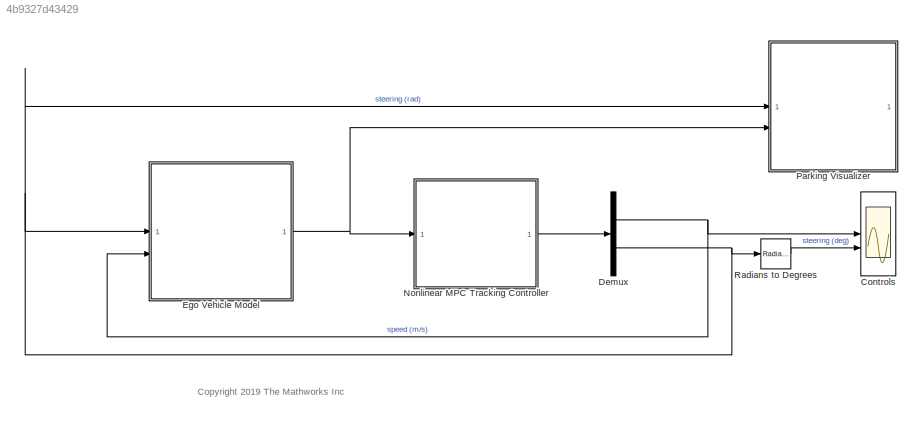
MODEL slx_4b9327d43429
KIND model
CONFIG AbsTol = auto
CONFIG EnableMultiTasking = off
CONFIG FixedStep = auto
CONFIG MaxStep = auto
CONFIG MinStep = auto
CONFIG RelTol = 1e-3
CONFIG SampleTimeConstraint = Unconstrained
CONFIG SolverName = VariableStepAuto
CONFIG StartTime = 0.0
CONFIG StopTime = Duration
BLOCK [Scope] Controls
  Floating = off
  NumInputPorts = 2
  ScopeSpecificationString = Simulink.scopes.TimeScopeBlockCfg('CurrentConfiguration', extmgr.ConfigurationSet(extmgr.Configuration('Core','General UI',true),extmgr.Configuration('Core','Source UI',true),extmgr.Configuration('Sources','WiredSimulink',true),extmgr.Configuration('Visuals','Time Domain',true,'SerializedDisplays',{struct('MinYLimReal','-1.94353','MaxYLimReal','1.9615','YLabelReal','','MinYLimMag','0.00000','MaxYL...<+1972ch>
BLOCK [Demux] Demux
  Outputs = [1 1]
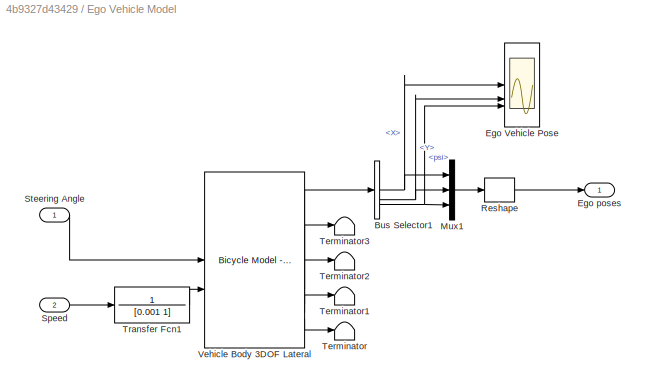
BLOCK [SubSystem] Ego Vehicle Model
BLOCK [BusSelector] Ego Vehicle Model/Bus Selector1
  OutputSignals = InertFrm.RearAxl.Disp.X,InertFrm.RearAxl.Disp.Y,InertFrm.Cg.Ang.psi
BLOCK [Scope] Ego Vehicle Model/Ego Vehicle Pose
  Floating = off
  NumInputPorts = 3
  ScopeSpecificationString = Simulink.scopes.TimeScopeBlockCfg('CurrentConfiguration', extmgr.ConfigurationSet(extmgr.Configuration('Core','General UI',true),extmgr.Configuration('Core','Source UI',true),extmgr.Configuration('Sources','WiredSimulink',true,'DataLoggingVariableName','ScopeData1'),extmgr.Configuration('Visuals','Time Domain',true,'SerializedDisplays',{struct('MinYLimReal','-2.41393','MaxYLimReal','8.04599','YLab...<+2757ch>
BLOCK [Outport] Ego Vehicle Model/Ego poses
BLOCK [Mux] Ego Vehicle Model/Mux1
  DisplayOption = bar
  Inputs = 3
BLOCK [Reshape] Ego Vehicle Model/Reshape
  OutputDimensionality = Customize
  OutputDimensions = [3,1]
BLOCK [Inport] Ego Vehicle Model/Speed
  Port = 2
BLOCK [Inport] Ego Vehicle Model/Steering Angle
BLOCK [Terminator] Ego Vehicle Model/Terminator
BLOCK [Terminator] Ego Vehicle Model/Terminator1
BLOCK [Terminator] Ego Vehicle Model/Terminator2
BLOCK [Terminator] Ego Vehicle Model/Terminator3
BLOCK [TransferFcn] Ego Vehicle Model/Transfer Fcn1
  Denominator = [0.001 1]
  Numerator = 1
BLOCK [Reference] Ego Vehicle Model/Vehicle Body 3DOF Lateral  REF=autolibshared/Bicycle Model - Velocity Input
  SourceBlock = autolibshared/Bicycle Model - Velocity Input
  SourceType = Vehicle Body 3DOF Lateral
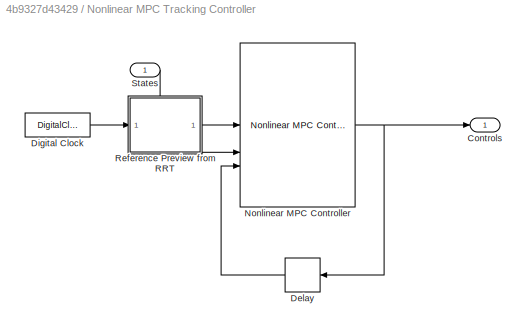
BLOCK [SubSystem] Nonlinear MPC Tracking Controller
BLOCK [Outport] Nonlinear MPC Tracking Controller/Controls
BLOCK [Delay] Nonlinear MPC Tracking Controller/Delay
  DelayLength = 1
  InputPortMap = u0
BLOCK [DigitalClock] Nonlinear MPC Tracking Controller/Digital Clock
  SampleTime = Ts
BLOCK [Reference] Nonlinear MPC Tracking Controller/Nonlinear MPC Controller  REF=mpclib/Nonlinear MPC Controller  (lib defined in mdl_ae329e0e0455)
  SCDEnableBlockLinearizationSpecification = on
  SourceBlock = mpclib/Nonlinear MPC Controller
  SourceType = NonlinearMPC
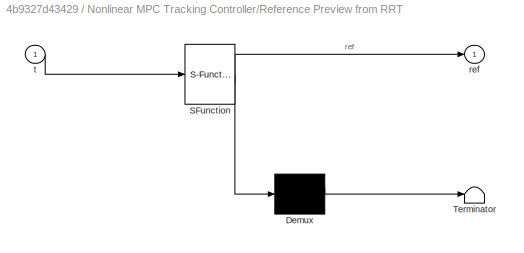
BLOCK [SubSystem] Nonlinear MPC Tracking Controller/Reference Preview from RRT
  ErrorFcn = Stateflow.Translate.translate
  PermitHierarchicalResolution = ExplicitOnly
  SFBlockType = MATLAB Function
  TreatAsAtomicUnit = on
BLOCK [Demux] Nonlinear MPC Tracking Controller/Reference Preview from RRT/ Demux 
  Outputs = 1
BLOCK [S-Function] Nonlinear MPC Tracking Controller/Reference Preview from RRT/ SFunction 
  EnableBusSupport = off
  FunctionName = sf_sfun
  Parameters = Duration,Ts,Xref,pTracking
  PortCounts = [1 2]
  SFcnIsStateOwnerBlock = off
  SFunctionDeploymentMode = off
  Tag = Stateflow S-Function 1
BLOCK [Terminator] Nonlinear MPC Tracking Controller/Reference Preview from RRT/ Terminator 
BLOCK [Outport] Nonlinear MPC Tracking Controller/Reference Preview from RRT/ref
  VectorParamsAs1DForOutWhenUnconnected = off
BLOCK [Inport] Nonlinear MPC Tracking Controller/Reference Preview from RRT/t
BLOCK [Inport] Nonlinear MPC Tracking Controller/States
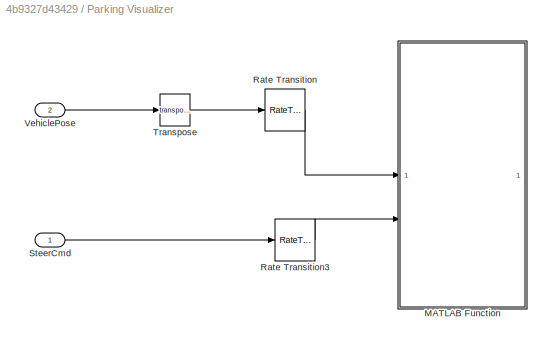
BLOCK [SubSystem] Parking Visualizer
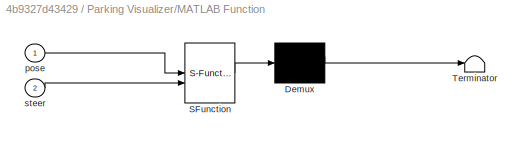
BLOCK [SubSystem] Parking Visualizer/MATLAB Function
  ErrorFcn = Stateflow.Translate.translate
  PermitHierarchicalResolution = ExplicitOnly
  SFBlockType = MATLAB Function
  TreatAsAtomicUnit = on
BLOCK [Demux] Parking Visualizer/MATLAB Function/ Demux 
  Outputs = 1
BLOCK [S-Function] Parking Visualizer/MATLAB Function/ SFunction 
  EnableBusSupport = off
  FunctionName = sf_sfun
  PortCounts = [2 1]
  SFcnIsStateOwnerBlock = off
  SFunctionDeploymentMode = off
  Tag = Stateflow S-Function 2
BLOCK [Terminator] Parking Visualizer/MATLAB Function/ Terminator 
BLOCK [Inport] Parking Visualizer/MATLAB Function/pose
BLOCK [Inport] Parking Visualizer/MATLAB Function/steer
  Port = 2
BLOCK [RateTransition] Parking Visualizer/Rate Transition
  OutPortSampleTime = Tv
BLOCK [RateTransition] Parking Visualizer/Rate Transition3
  OutPortSampleTime = Tv
BLOCK [Inport] Parking Visualizer/SteerCmd
BLOCK [Math] Parking Visualizer/Transpose
  Operator = transpose
BLOCK [Inport] Parking Visualizer/VehiclePose
  Port = 2
BLOCK [Reference] Radians to Degrees  REF=simulink_extras/Transformations/Radians
to Degrees
  SourceBlock = simulink_extras/Transformations/Radians\nto Degrees
  SourceType = RadiansToDegrees
ANNOTATION (root): <copyright redacted>
NET Demux:1 -> Controls:1, Ego Vehicle Model:2
NET Demux:2 -> Ego Vehicle Model:1, Parking Visualizer:1, Radians to Degrees:1
NET Ego Vehicle Model/Bus Selector1:1 -> Ego Vehicle Model/Ego Vehicle Pose:1, Ego Vehicle Model/Mux1:1
NET Ego Vehicle Model/Bus Selector1:2 -> Ego Vehicle Model/Ego Vehicle Pose:2, Ego Vehicle Model/Mux1:2
NET Ego Vehicle Model/Bus Selector1:3 -> Ego Vehicle Model/Ego Vehicle Pose:3, Ego Vehicle Model/Mux1:3
LINE Ego Vehicle Model/Mux1:1 -> Ego Vehicle Model/Reshape:1
LINE Ego Vehicle Model/Reshape:1 -> Ego Vehicle Model/Ego poses:1
LINE Ego Vehicle Model/Speed:1 -> Ego Vehicle Model/Transfer Fcn1:1
LINE Ego Vehicle Model/Steering Angle:1 -> Ego Vehicle Model/Vehicle Body 3DOF Lateral:1
LINE Ego Vehicle Model/Transfer Fcn1:1 -> Ego Vehicle Model/Vehicle Body 3DOF Lateral:2
LINE Ego Vehicle Model/Vehicle Body 3DOF Lateral:1 -> Ego Vehicle Model/Bus Selector1:1
LINE Ego Vehicle Model/Vehicle Body 3DOF Lateral:2 -> Ego Vehicle Model/Terminator3:1
LINE Ego Vehicle Model/Vehicle Body 3DOF Lateral:3 -> Ego Vehicle Model/Terminator2:1
LINE Ego Vehicle Model/Vehicle Body 3DOF Lateral:4 -> Ego Vehicle Model/Terminator1:1
LINE Ego Vehicle Model/Vehicle Body 3DOF Lateral:5 -> Ego Vehicle Model/Terminator:1
NET Ego Vehicle Model:1 -> Nonlinear MPC Tracking Controller:1, Parking Visualizer:2
LINE Nonlinear MPC Tracking Controller/Delay:1 -> Nonlinear MPC Tracking Controller/Nonlinear MPC Controller:3
LINE Nonlinear MPC Tracking Controller/Digital Clock:1 -> Nonlinear MPC Tracking Controller/Reference Preview from RRT:1
NET Nonlinear MPC Tracking Controller/Nonlinear MPC Controller:1 -> Nonlinear MPC Tracking Controller/Controls:1, Nonlinear MPC Tracking Controller/Delay:1
LINE Nonlinear MPC Tracking Controller/Reference Preview from RRT:1 -> Nonlinear MPC Tracking Controller/Nonlinear MPC Controller:2
LINE Nonlinear MPC Tracking Controller/States:1 -> Nonlinear MPC Tracking Controller/Nonlinear MPC Controller:1
LINE Nonlinear MPC Tracking Controller:1 -> Demux:1
LINE Parking Visualizer/Rate Transition3:1 -> Parking Visualizer/MATLAB Function:2
LINE Parking Visualizer/Rate Transition:1 -> Parking Visualizer/MATLAB Function:1
LINE Parking Visualizer/SteerCmd:1 -> Parking Visualizer/Rate Transition3:1
LINE Parking Visualizer/Transpose:1 -> Parking Visualizer/Rate Transition:1
LINE Parking Visualizer/VehiclePose:1 -> Parking Visualizer/Transpose:1
LINE Radians to Degrees:1 -> Controls:2
note: NET lines group one-source signal fan-out (src -> all destinations, sorted); 1:1 wires keep LINE
CHART Nonlinear MPC Tracking Controller/Reference Preview from RRT states=1 transitions=1
  STATE_LABEL 'eML_blk_kernel()'
  STATE_LABEL 'SCRIPT:\nfunction ref = fcn(t,Ts,Duration,pTracking,Xref)\nTend = Duration;\nT = t+(1:pTracking)*Ts;\nT = min(T,Tend);\ntime = Ts*(1:length(Xref));\nref = interp1(time,Xref,T);\n'
CHART Parking Visualizer/MATLAB Function states=1 transitions=1
  STATE_LABEL 'eML_blk_kernel()'
  STATE_LABEL "SCRIPT:\nfunction visualizeParking(pose, steer)\n\n%visualizePath Display simulation results.\n\ncoder.extrinsic('helperSLVisualizeParking');\n\nhelperSLVisualizeParking(pose, steer);"
CHART  states=0 transitions=0
CHART  states=0 transitions=0
